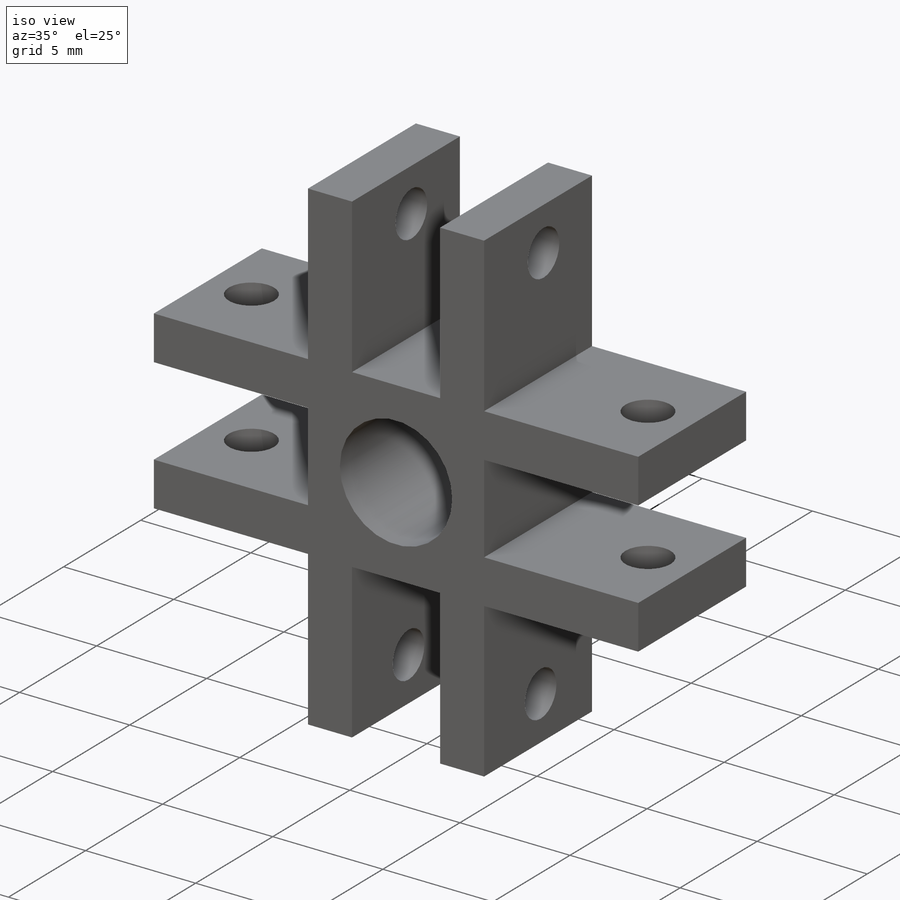
[diagram: iso view]
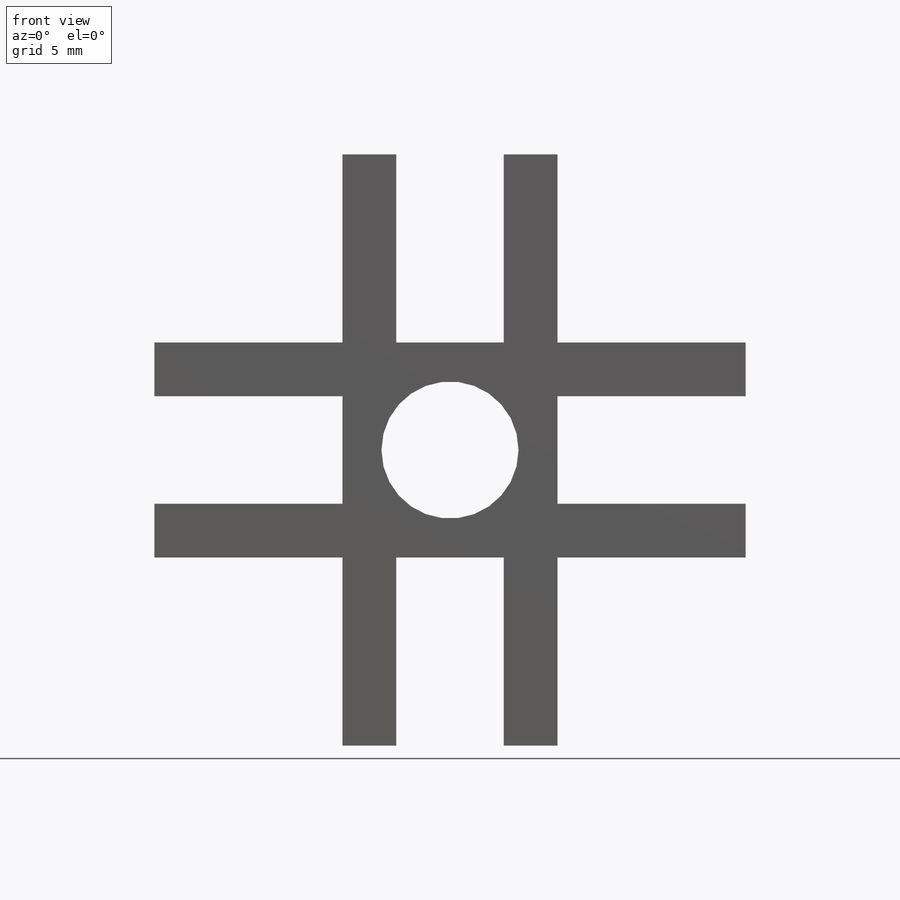
[diagram: front view]
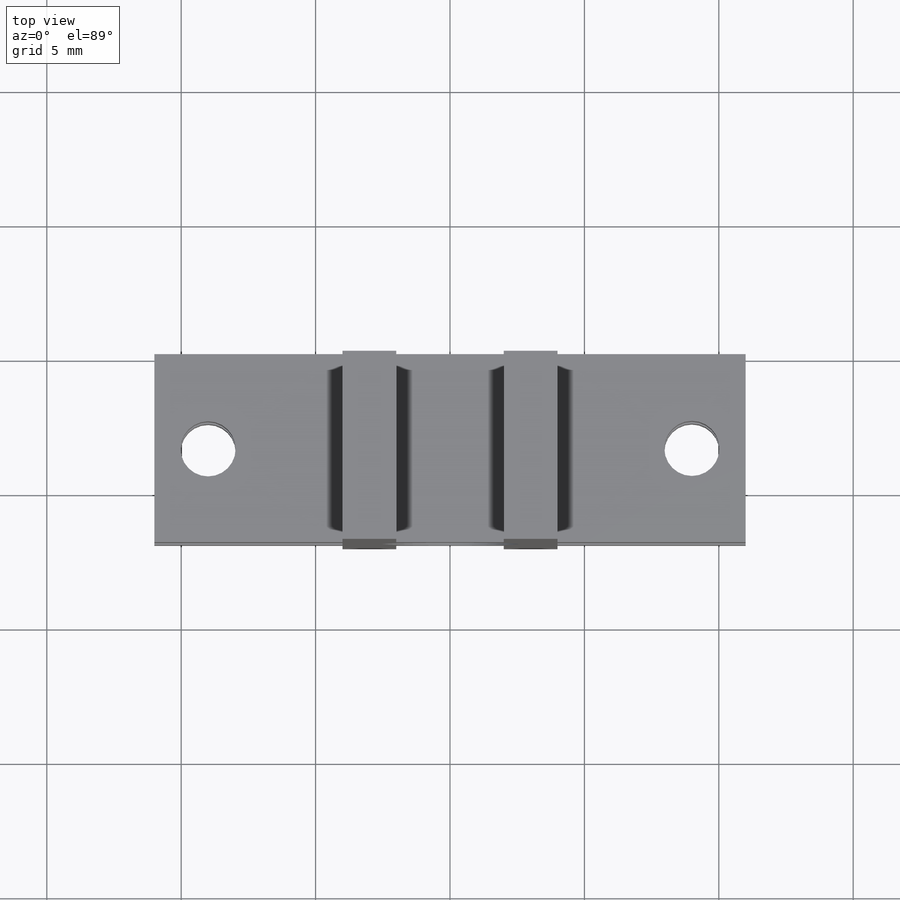
[diagram: top view]
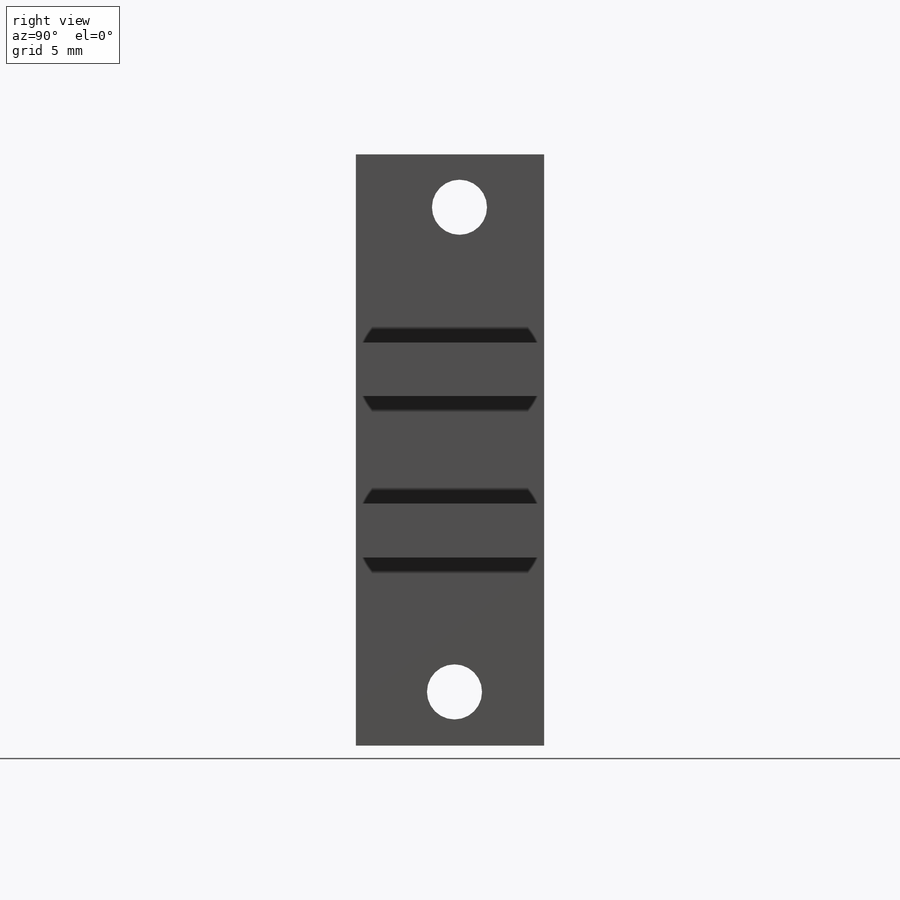
[diagram: right view]
SOLIDWORKS PART (.sldprt)
format: sldprt  version: not decoded by parser v0  size: 313,344 bytes
history: native  units: mm
features: sketch x9, cut_extrude x7, extrude x2, material x1 (+13 scaffold rows collapsed)
feature tree (32):
  scaffold x13  (default folders/planes/origin — collapsed)
  material  "Material <not specified>"
  sketch  "Sketch1"  dims[D1=22.0mm D2=22.0mm]
  extrude  "Extrude1"  Depth=7mm
  sketch  "Sketch2"  dims[D1=7.0mm D2=7.0mm]
  cut_extrude  "Extrude2"  Depth=7mm
  sketch  "Sketch3"  dims[D1=4.0mm D2=4.0mm D3=2.0mm D4=2.0mm]
  cut_extrude  "Extrude3"  Depth=7mm
  sketch  "Sketch4"  dims[D1=5.0mm]
  extrude  "Extrude5"  Depth=7mm
  sketch  "Sketch5"  dims[D1=5.1mm]
  cut_extrude  "Extrude6"  Depth=10mm
  sketch  "Sketch6"  dims[D1=2.05mm D2=3.5mm D3=2.0mm]
  cut_extrude  "Extrude7"  Depth=10mm
  sketch  "Sketch7"  dims[D1=2.05mm D2=2.0mm]
  cut_extrude  "Extrude8"  Depth=10mm
  sketch  "Sketch8"  dims[D1=2.05mm D2=2.0mm]
  cut_extrude  "Extrude9"  Depth=10mm
  sketch  "Sketch9"  dims[D1=2.05mm D2=2.0mm]
  cut_extrude  "Extrude10"  Depth=10mm
decode coverage: 18 of 18 modeling features carry decoded parameters
note: suppression state not decoded; provenance and decode notes live in map.json
